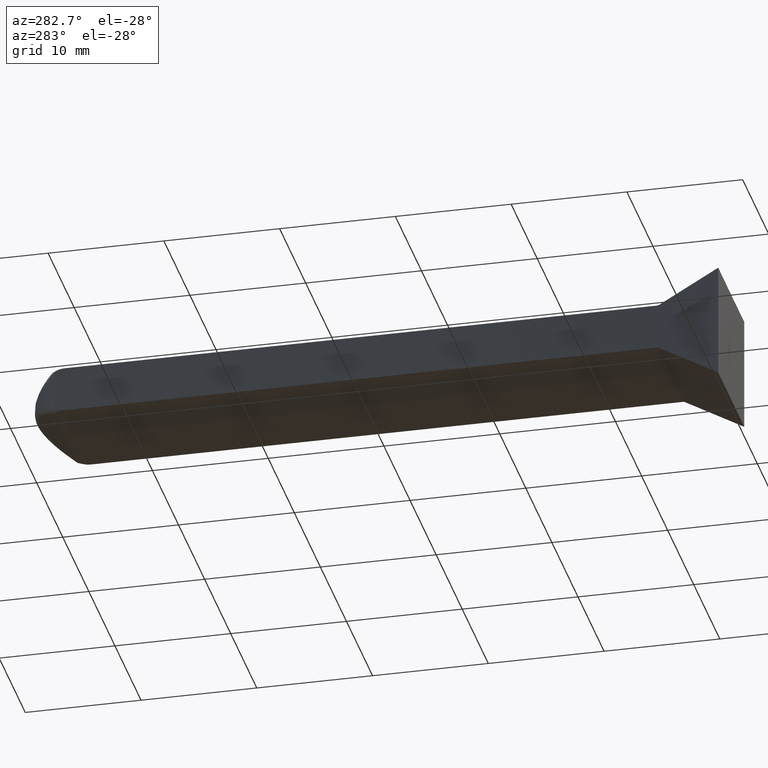
[diagram: clean part render]
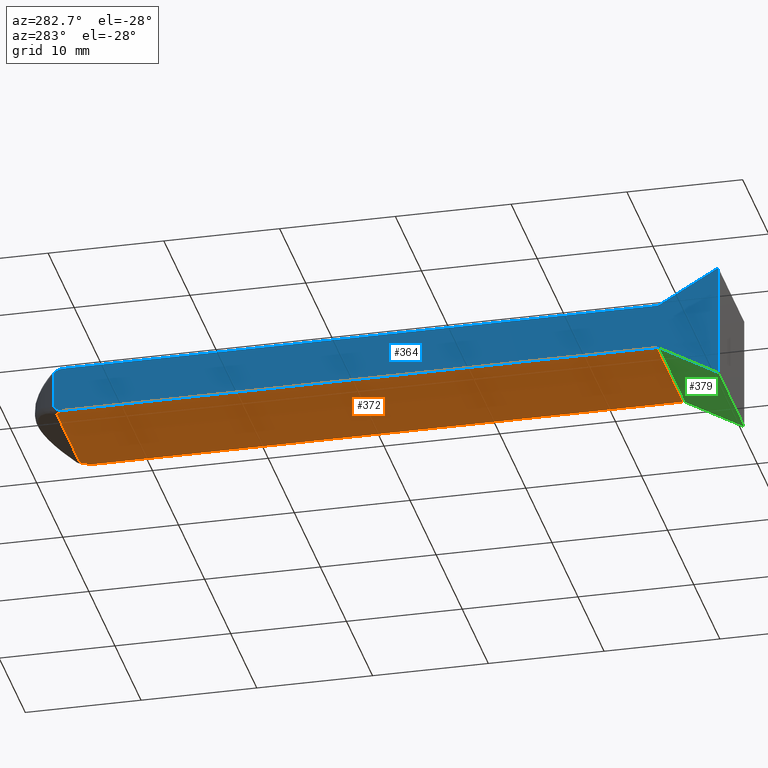
[diagram: same view with three faces highlighted in distinct colors, each labeled with its STEP entity id]
A machine part, auxiliary view with three faces highlighted in distinct colors.
Their STEP definitions:

[orange] entity #372 — the highlighted planar face has unit normal (0, -0, -1).
#60=CIRCLE('',#438,5.61029034892354);
#61=CIRCLE('',#440,5.61029034892354);
#77=FACE_OUTER_BOUND('',#101,.T.);
#101=EDGE_LOOP('',(#312,#313,#314,#315,#316,#317));
#115=LINE('',#591,#137);
#122=LINE('',#705,#144);
#124=LINE('',#763,#146);
#126=LINE('',#766,#148);
#137=VECTOR('',#464,10.);
#144=VECTOR('',#509,10.);
#146=VECTOR('',#549,10.);
#148=VECTOR('',#553,10.);
#159=VERTEX_POINT('',#588);
#160=VERTEX_POINT('',#590);
#177=VERTEX_POINT('',#693);
#178=VERTEX_POINT('',#704);
#182=VERTEX_POINT('',#716);
#185=VERTEX_POINT('',#755);
#192=EDGE_CURVE('',#159,#160,#115,.T.);
#217=EDGE_CURVE('',#177,#178,#122,.T.);
#230=EDGE_CURVE('',#182,#177,#60,.T.);
#231=EDGE_CURVE('',#160,#185,#61,.T.);
#232=EDGE_CURVE('',#185,#182,#124,.T.);
#234=EDGE_CURVE('',#178,#159,#126,.T.);
#312=ORIENTED_EDGE('',*,*,#231,.F.);
#313=ORIENTED_EDGE('',*,*,#192,.F.);
#314=ORIENTED_EDGE('',*,*,#234,.F.);
#315=ORIENTED_EDGE('',*,*,#217,.F.);
#316=ORIENTED_EDGE('',*,*,#230,.F.);
#317=ORIENTED_EDGE('',*,*,#232,.F.);
#351=PLANE('',#442);
#372=ADVANCED_FACE('',(#77),#351,.T.);
#438=AXIS2_PLACEMENT_3D('',#759,#541,#542);
#440=AXIS2_PLACEMENT_3D('',#761,#545,#546);
#442=AXIS2_PLACEMENT_3D('',#765,#551,#552);
#464=DIRECTION('',(0.,1.,-7.02809666932559E-17));
#509=DIRECTION('',(0.,-1.,7.02809666932559E-17));
#541=DIRECTION('center_axis',(0.,7.02809666932559E-17,1.));
#542=DIRECTION('ref_axis',(0.798382545479794,-0.602150571761917,3.71044641490183E-17));
#545=DIRECTION('center_axis',(0.,7.02809666932559E-17,1.));
#546=DIRECTION('ref_axis',(-0.798382545479794,-0.602150571761918,3.71044641490183E-17));
#549=DIRECTION('',(-1.,0.,0.));
#551=DIRECTION('center_axis',(0.,-7.02809666932559E-17,-1.));
#552=DIRECTION('ref_axis',(0.,1.,-7.02809666932559E-17));
#553=DIRECTION('',(1.,0.,0.));
#588=CARTESIAN_POINT('',(5.,-14.6698730037844,-2.));
#590=CARTESIAN_POINT('',(5.,36.4343820856394,-2.));
#591=CARTESIAN_POINT('',(5.,-14.8038476,-2.));
#693=CARTESIAN_POINT('',(-5.,36.4343820856394,-2.));
#704=CARTESIAN_POINT('',(-5.,-14.6698730037844,-2.));
#705=CARTESIAN_POINT('',(-5.,-14.8038476,-2.));
#716=CARTESIAN_POINT('',(-4.4791578896543,37.2679491924311,-2.));
#755=CARTESIAN_POINT('',(4.4791578896543,37.2679491924311,-2.));
#759=CARTESIAN_POINT('Origin',(0.,33.8897096510764,-2.));
#761=CARTESIAN_POINT('Origin',(0.,33.8897096510764,-2.));
#763=CARTESIAN_POINT('',(0.,37.2679491924311,-2.));
#765=CARTESIAN_POINT('Origin',(0.,-14.8038476,-2.));
#766=CARTESIAN_POINT('',(0.,-14.6698730037844,-2.));

[blue] entity #364 — the highlighted planar face has unit normal (-1, 0, 0).
#36=B_SPLINE_CURVE_WITH_KNOTS('',3,(#673,#674,#675,#676,#677,#678,#679,
#680,#681,#682),.UNSPECIFIED.,.F.,.F.,(4,2,2,2,4),(0.532441530368069,0.547450862035391,
0.567695790465013,0.597524915434435,0.64457020237994),.UNSPECIFIED.);
#37=B_SPLINE_CURVE_WITH_KNOTS('',3,(#694,#695,#696,#697,#698,#699,#700,
#701,#702,#703),.UNSPECIFIED.,.F.,.F.,(4,2,2,2,4),(0.420312858356198,0.467358145301704,
0.497187270271125,0.517432198700747,0.532441530368069),.UNSPECIFIED.);
#50=CIRCLE('',#422,0.5);
#51=CIRCLE('',#423,0.5);
#69=FACE_OUTER_BOUND('',#93,.T.);
#93=EDGE_LOOP('',(#272,#273,#274,#275,#276,#277,#278,#279,#280,#281));
#113=LINE('',#584,#135);
#119=LINE('',#687,#141);
#120=LINE('',#690,#142);
#121=LINE('',#692,#143);
#122=LINE('',#705,#144);
#123=LINE('',#708,#145);
#135=VECTOR('',#458,10.);
#141=VECTOR('',#504,10.);
#142=VECTOR('',#507,10.);
#143=VECTOR('',#508,10.);
#144=VECTOR('',#509,10.);
#145=VECTOR('',#512,10.);
#154=VERTEX_POINT('',#577);
#157=VERTEX_POINT('',#582);
#172=VERTEX_POINT('',#671);
#173=VERTEX_POINT('',#672);
#174=VERTEX_POINT('',#686);
#175=VERTEX_POINT('',#688);
#176=VERTEX_POINT('',#691);
#177=VERTEX_POINT('',#693);
#178=VERTEX_POINT('',#704);
#179=VERTEX_POINT('',#706);
#189=EDGE_CURVE('',#154,#157,#113,.T.);
#209=EDGE_CURVE('',#172,#173,#36,.T.);
#212=EDGE_CURVE('',#157,#174,#119,.T.);
#213=EDGE_CURVE('',#175,#174,#50,.T.);
#214=EDGE_CURVE('',#175,#173,#120,.T.);
#215=EDGE_CURVE('',#172,#176,#121,.T.);
#216=EDGE_CURVE('',#177,#176,#37,.T.);
#217=EDGE_CURVE('',#177,#178,#122,.T.);
#218=EDGE_CURVE('',#179,#178,#51,.T.);
#219=EDGE_CURVE('',#179,#154,#123,.T.);
#272=ORIENTED_EDGE('',*,*,#189,.T.);
#273=ORIENTED_EDGE('',*,*,#212,.T.);
#274=ORIENTED_EDGE('',*,*,#213,.F.);
#275=ORIENTED_EDGE('',*,*,#214,.T.);
#276=ORIENTED_EDGE('',*,*,#209,.F.);
#277=ORIENTED_EDGE('',*,*,#215,.T.);
#278=ORIENTED_EDGE('',*,*,#216,.F.);
#279=ORIENTED_EDGE('',*,*,#217,.T.);
#280=ORIENTED_EDGE('',*,*,#218,.F.);
#281=ORIENTED_EDGE('',*,*,#219,.T.);
#350=PLANE('',#421);
#364=ADVANCED_FACE('',(#69),#350,.T.);
#421=AXIS2_PLACEMENT_3D('',#685,#502,#503);
#422=AXIS2_PLACEMENT_3D('',#689,#505,#506);
#423=AXIS2_PLACEMENT_3D('',#707,#510,#511);
#458=DIRECTION('',(0.,-7.93016446160828E-16,1.));
#502=DIRECTION('center_axis',(-1.,0.,0.));
#503=DIRECTION('ref_axis',(0.,0.,1.));
#504=DIRECTION('',(0.,0.866025403784438,-0.5));
#505=DIRECTION('center_axis',(-1.,0.,0.));
#506=DIRECTION('ref_axis',(0.,-0.258819045102524,-0.965925826289068));
#507=DIRECTION('',(0.,1.,3.20587813129454E-16));
#508=DIRECTION('',(0.,0.,-1.));
#509=DIRECTION('',(0.,-1.,7.02809666932559E-17));
#510=DIRECTION('center_axis',(-1.,0.,0.));
#511=DIRECTION('ref_axis',(0.,-0.258819045102524,0.965925826289067));
#512=DIRECTION('',(0.,-0.866025403784438,-0.500000000000001));
#577=CARTESIAN_POINT('',(-5.,-20.0000000227066,-5.));
#582=CARTESIAN_POINT('',(-5.,-20.0000000227066,5.));
#584=CARTESIAN_POINT('',(-5.,-20.0000000227066,-1.14789130626797E-14));
#671=CARTESIAN_POINT('',(-5.,37.4019237886467,1.5));
#672=CARTESIAN_POINT('',(-5.,36.4343820856394,2.));
#673=CARTESIAN_POINT('Ctrl Pts',(-5.,37.4019237886467,1.5));
#674=CARTESIAN_POINT('Ctrl Pts',(-5.,37.4019237886467,1.55003110555774));
#675=CARTESIAN_POINT('Ctrl Pts',(-5.,37.3852688075912,1.60771205734979));
#676=CARTESIAN_POINT('Ctrl Pts',(-5.,37.3280709592755,1.71036678654257));
#677=CARTESIAN_POINT('Ctrl Pts',(-5.,37.2706697534414,1.7674878474809));
#678=CARTESIAN_POINT('Ctrl Pts',(-5.,37.1347776003966,1.86440762361259));
#679=CARTESIAN_POINT('Ctrl Pts',(-5.,37.024811198338,1.9107090011444));
#680=CARTESIAN_POINT('Ctrl Pts',(-5.,36.7784339233492,1.98114547058739));
#681=CARTESIAN_POINT('Ctrl Pts',(-5.,36.5911997087911,2.));
#682=CARTESIAN_POINT('Ctrl Pts',(-5.,36.4343820856394,2.));
#685=CARTESIAN_POINT('Origin',(-5.,9.64999998864669,0.));
#686=CARTESIAN_POINT('',(-5.,-14.9198730037844,2.06698729810776));
#687=CARTESIAN_POINT('',(-5.,-14.8038476,2.));
#688=CARTESIAN_POINT('',(-5.,-14.6698730037844,1.99999999999998));
#689=CARTESIAN_POINT('Origin',(-5.,-14.6698730037844,2.49999999999998));
#690=CARTESIAN_POINT('',(-5.,37.4019237886467,2.));
#691=CARTESIAN_POINT('',(-5.,37.4019237886467,-1.5));
#692=CARTESIAN_POINT('',(-5.,37.4019237886467,2.5));
#693=CARTESIAN_POINT('',(-5.,36.4343820856394,-2.));
#694=CARTESIAN_POINT('Ctrl Pts',(-5.,36.4343820856394,-2.));
#695=CARTESIAN_POINT('Ctrl Pts',(-5.,36.5911997087911,-2.));
#696=CARTESIAN_POINT('Ctrl Pts',(-5.,36.7784339233492,-1.98114547058739));
#697=CARTESIAN_POINT('Ctrl Pts',(-5.,37.024811198338,-1.9107090011444));
#698=CARTESIAN_POINT('Ctrl Pts',(-5.,37.1347776003966,-1.86440762361259));
#699=CARTESIAN_POINT('Ctrl Pts',(-5.,37.2706697534414,-1.7674878474809));
#700=CARTESIAN_POINT('Ctrl Pts',(-5.,37.3280709592755,-1.71036678654257));
#701=CARTESIAN_POINT('Ctrl Pts',(-5.,37.3852688075912,-1.60771205734979));
#702=CARTESIAN_POINT('Ctrl Pts',(-5.,37.4019237886467,-1.55003110555774));
#703=CARTESIAN_POINT('Ctrl Pts',(-5.,37.4019237886467,-1.5));
#704=CARTESIAN_POINT('',(-5.,-14.6698730037844,-2.));
#705=CARTESIAN_POINT('',(-5.,-14.8038476,-2.));
#706=CARTESIAN_POINT('',(-5.,-14.9198730037844,-2.06698729810778));
#707=CARTESIAN_POINT('Origin',(-5.,-14.6698730037844,-2.5));
#708=CARTESIAN_POINT('',(-5.,-20.0000000227066,-5.));

[green] entity #379 — the highlighted planar face has unit normal (0, 0.5, -0.866).
#84=FACE_OUTER_BOUND('',#108,.T.);
#108=EDGE_LOOP('',(#342,#343,#344,#345));
#110=LINE('',#579,#132);
#114=LINE('',#587,#136);
#123=LINE('',#708,#145);
#127=LINE('',#768,#149);
#132=VECTOR('',#455,10.);
#136=VECTOR('',#461,10.);
#145=VECTOR('',#512,10.);
#149=VECTOR('',#556,10.);
#154=VERTEX_POINT('',#577);
#155=VERTEX_POINT('',#578);
#158=VERTEX_POINT('',#586);
#179=VERTEX_POINT('',#706);
#186=EDGE_CURVE('',#154,#155,#110,.T.);
#190=EDGE_CURVE('',#155,#158,#114,.T.);
#219=EDGE_CURVE('',#179,#154,#123,.T.);
#235=EDGE_CURVE('',#158,#179,#127,.T.);
#342=ORIENTED_EDGE('',*,*,#235,.F.);
#343=ORIENTED_EDGE('',*,*,#190,.F.);
#344=ORIENTED_EDGE('',*,*,#186,.F.);
#345=ORIENTED_EDGE('',*,*,#219,.F.);
#355=PLANE('',#449);
#379=ADVANCED_FACE('',(#84),#355,.T.);
#449=AXIS2_PLACEMENT_3D('',#778,#571,#572);
#455=DIRECTION('',(1.,0.,0.));
#461=DIRECTION('',(0.,0.866025403784438,0.500000000000001));
#512=DIRECTION('',(0.,-0.866025403784438,-0.500000000000001));
#556=DIRECTION('',(-1.,0.,0.));
#571=DIRECTION('center_axis',(0.,0.500000000000001,-0.866025403784438));
#572=DIRECTION('ref_axis',(0.,0.866025403784438,0.500000000000001));
#577=CARTESIAN_POINT('',(-5.,-20.0000000227066,-5.));
#578=CARTESIAN_POINT('',(5.,-20.0000000227066,-5.));
#579=CARTESIAN_POINT('',(0.,-20.0000000227066,-5.));
#586=CARTESIAN_POINT('',(5.,-14.9198730037844,-2.06698729810778));
#587=CARTESIAN_POINT('',(5.,-20.0000000227066,-5.));
#706=CARTESIAN_POINT('',(-5.,-14.9198730037844,-2.06698729810778));
#708=CARTESIAN_POINT('',(-5.,-20.0000000227066,-5.));
#768=CARTESIAN_POINT('',(0.,-14.9198730037844,-2.06698729810778));
#778=CARTESIAN_POINT('Origin',(0.,-20.0000000227066,-5.));